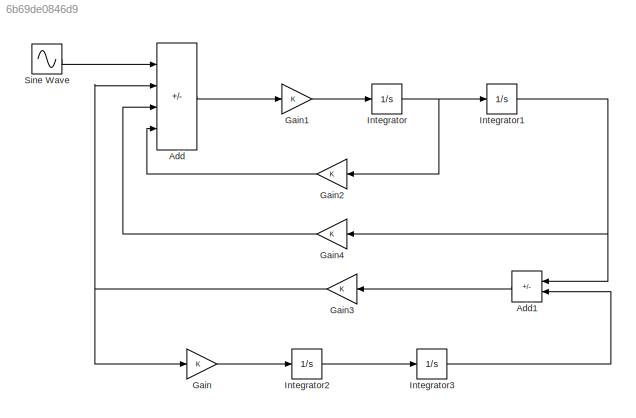
MODEL slx_6b69de0846d9
KIND model
CONFIG AbsTol = auto
CONFIG EnableMultiTasking = off
CONFIG FixedStep = auto
CONFIG MaxStep = auto
CONFIG MinStep = auto
CONFIG RelTol = 1e-3
CONFIG SampleTimeConstraint = Unconstrained
CONFIG SolverName = VariableStepAuto
CONFIG StartTime = 0.0
CONFIG StopTime = 10.0
BLOCK [Sum] Add
  IconShape = rectangular
  Inputs = +---
  Ports = [4, 1]
BLOCK [Sum] Add1
  IconShape = rectangular
  Inputs = +-
  Ports = [2, 1]
BLOCK [Gain] Gain
BLOCK [Gain] Gain1
  OutMax = k
BLOCK [Gain] Gain2
  LockScale = on
  NameLocation = top
BLOCK [Gain] Gain3
  NameLocation = top
BLOCK [Gain] Gain4
  NameLocation = top
BLOCK [Integrator] Integrator
  Ports = [1, 1]
BLOCK [Integrator] Integrator1
  Ports = [1, 1]
BLOCK [Integrator] Integrator2
  Ports = [1, 1]
BLOCK [Integrator] Integrator3
  Ports = [1, 1]
BLOCK [Sin] Sine Wave
  Ports = [0, 1]
  SampleTime = 0
LINE Add1:1 -> Gain3:1
LINE Add:1 -> Gain1:1
LINE Gain1:1 -> Integrator:1
LINE Gain2:1 -> Add:4
NET Gain3:1 -> Add:2, Gain:1
LINE Gain4:1 -> Add:3
LINE Gain:1 -> Integrator2:1
NET Integrator1:1 -> Add1:1, Gain4:1
LINE Integrator2:1 -> Integrator3:1
LINE Integrator3:1 -> Add1:2
NET Integrator:1 -> Gain2:1, Integrator1:1
LINE Sine Wave:1 -> Add:1
note: NET lines group one-source signal fan-out (src -> all destinations, sorted); 1:1 wires keep LINE
